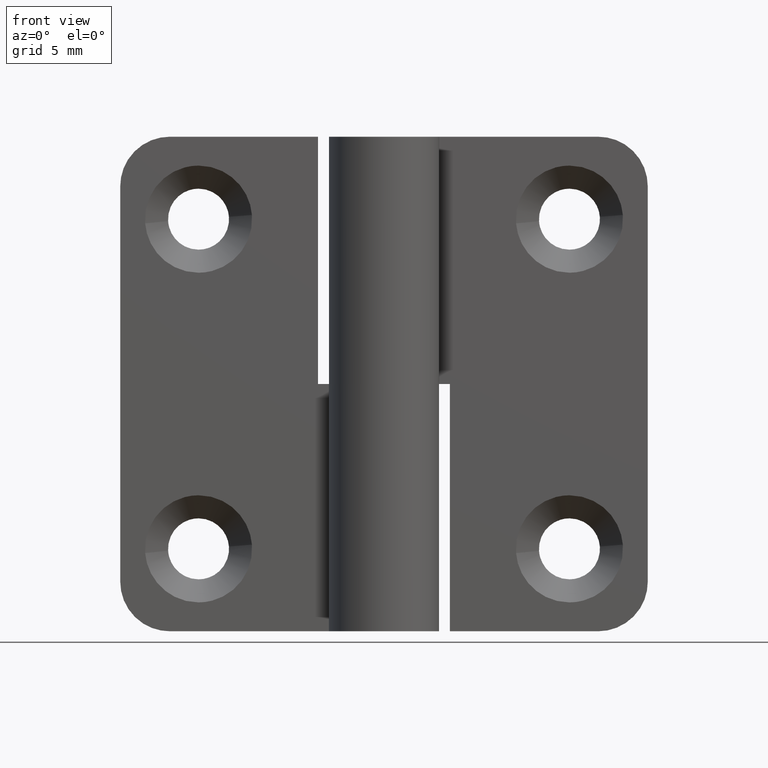
[diagram: clean part render]
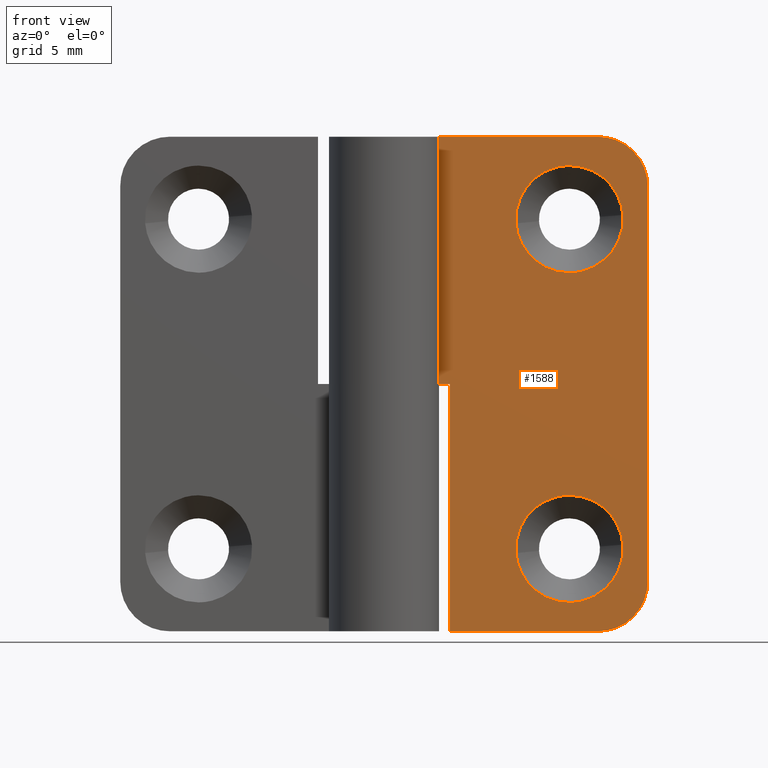
[diagram: same view with one face highlighted and labeled with its STEP entity id]
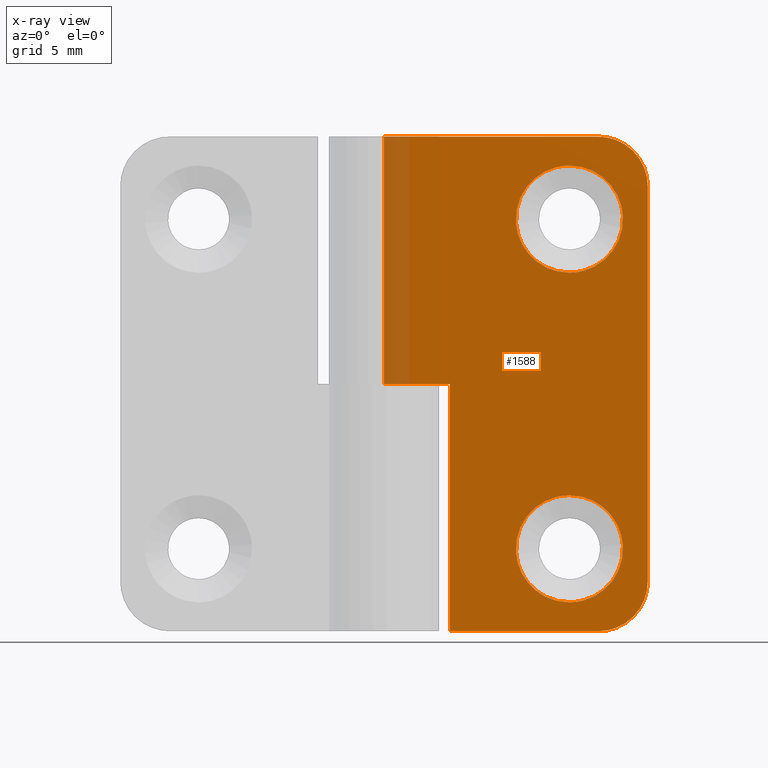
[diagram: x-ray of the same camera — body ghosted, the highlighted face saturated]
A machine part, front view. The second image highlights one B-rep face of the part: STEP entity #1588.
The next image is the same camera in x-ray: the body ghosted, the highlighted face saturated — about 7% of this face is hidden behind the body in this view.
In plain terms, the highlighted face is a freeform B-spline surface patch.
Its self-contained STEP definition (entity closure, byte-faithful):
#661=CARTESIAN_POINT('',(14.489981334637280,1.749999999988452,25.255000061203852));
#662=VERTEX_POINT('',#661);
#668=CARTESIAN_POINT('',(11.250000000000000,1.750000000000000,28.250007999999799));
#669=VERTEX_POINT('',#668);
#670=CARTESIAN_POINT('',(11.250000000000000,1.750000000000000,28.250007999999799));
#671=CARTESIAN_POINT('',(14.254269097726139,1.750000000000000,28.250007999999802));
#672=CARTESIAN_POINT('',(14.489981334637282,1.749999999988452,25.255000061203837));
#680=(BOUNDED_CURVE()B_SPLINE_CURVE(2,(#670,#671,#672),.UNSPECIFIED.,.F.,.U.)B_SPLINE_CURVE_WITH_KNOTS((3,3),(0.0,0.236331300623493),.UNSPECIFIED.)CURVE()GEOMETRIC_REPRESENTATION_ITEM()RATIONAL_B_SPLINE_CURVE((1.0,0.723120658616062,0.969723356152462))REPRESENTATION_ITEM(''));
#681=EDGE_CURVE('',#669,#662,#680,.T.);
#683=CARTESIAN_POINT('',(8.010018665362715,1.749999999988451,24.745015938795760));
#684=VERTEX_POINT('',#683);
#685=CARTESIAN_POINT('',(8.010018665362715,1.749999999988451,24.745015938795760));
#686=CARTESIAN_POINT('',(8.0,1.750000000000000,24.872315152136828));
#687=CARTESIAN_POINT('',(8.0,1.750000000000000,25.000007999999799));
#688=CARTESIAN_POINT('',(8.0,1.750000000000000,28.250007999999792));
#689=CARTESIAN_POINT('',(11.250000000000000,1.750000000000000,28.250007999999799));
#697=(BOUNDED_CURVE()B_SPLINE_CURVE(2,(#685,#686,#687,#688,#689),.UNSPECIFIED.,.F.,.U.)B_SPLINE_CURVE_WITH_KNOTS((3,2,3),(0.736331300623493,0.750000000000000,1.0),.UNSPECIFIED.)CURVE()GEOMETRIC_REPRESENTATION_ITEM()RATIONAL_B_SPLINE_CURVE((0.969723356152462,0.983986122570486,1.0,0.707106781186547,1.0))REPRESENTATION_ITEM(''));
#698=EDGE_CURVE('',#684,#669,#697,.T.);
#735=CARTESIAN_POINT('',(11.250000000000000,1.750000000000000,21.750007999999799));
#736=VERTEX_POINT('',#735);
#737=CARTESIAN_POINT('',(11.250000000000000,1.750000000000000,21.750007999999799));
#738=CARTESIAN_POINT('',(8.245730902273849,1.750000000000000,21.750007999999795));
#739=CARTESIAN_POINT('',(8.010018665362715,1.749999999988451,24.745015938795767));
#747=(BOUNDED_CURVE()B_SPLINE_CURVE(2,(#737,#738,#739),.UNSPECIFIED.,.F.,.U.)B_SPLINE_CURVE_WITH_KNOTS((3,3),(0.500000000000000,0.736331300623494),.UNSPECIFIED.)CURVE()GEOMETRIC_REPRESENTATION_ITEM()RATIONAL_B_SPLINE_CURVE((1.0,0.723120658616061,0.969723356152463))REPRESENTATION_ITEM(''));
#748=EDGE_CURVE('',#736,#684,#747,.T.);
#750=CARTESIAN_POINT('',(14.489981334637278,1.749999999988452,25.255000061203845));
#751=CARTESIAN_POINT('',(14.500000000000005,1.750000000000001,25.127700847862769));
#752=CARTESIAN_POINT('',(14.500000000000000,1.750000000000000,25.000007999999799));
#753=CARTESIAN_POINT('',(14.500000000000004,1.750000000000000,21.750007999999792));
#754=CARTESIAN_POINT('',(11.250000000000000,1.750000000000000,21.750007999999799));
#762=(BOUNDED_CURVE()B_SPLINE_CURVE(2,(#750,#751,#752,#753,#754),.UNSPECIFIED.,.F.,.U.)B_SPLINE_CURVE_WITH_KNOTS((3,2,3),(0.236331300623493,0.250000000000000,0.500000000000000),.UNSPECIFIED.)CURVE()GEOMETRIC_REPRESENTATION_ITEM()RATIONAL_B_SPLINE_CURVE((0.969723356152462,0.983986122570486,1.0,0.707106781186547,1.0))REPRESENTATION_ITEM(''));
#763=EDGE_CURVE('',#662,#736,#762,.T.);
#993=CARTESIAN_POINT('',(14.489981334637280,1.749999999988452,5.254992061204042));
#994=VERTEX_POINT('',#993);
#1000=CARTESIAN_POINT('',(11.250000000000000,1.750000000000000,8.250000000000000));
#1001=VERTEX_POINT('',#1000);
#1002=CARTESIAN_POINT('',(11.250000000000000,1.750000000000000,8.250000000000000));
#1003=CARTESIAN_POINT('',(14.254269097726139,1.750000000000000,8.249999999999998));
#1004=CARTESIAN_POINT('',(14.489981334637282,1.749999999988452,5.254992061204042));
#1012=(BOUNDED_CURVE()B_SPLINE_CURVE(2,(#1002,#1003,#1004),.UNSPECIFIED.,.F.,.U.)B_SPLINE_CURVE_WITH_KNOTS((3,3),(0.0,0.236331300623493),.UNSPECIFIED.)CURVE()GEOMETRIC_REPRESENTATION_ITEM()RATIONAL_B_SPLINE_CURVE((1.0,0.723120658616062,0.969723356152462))REPRESENTATION_ITEM(''));
#1013=EDGE_CURVE('',#1001,#994,#1012,.T.);
#1015=CARTESIAN_POINT('',(8.010018665362715,1.749999999988451,4.745007938795959));
#1016=VERTEX_POINT('',#1015);
#1017=CARTESIAN_POINT('',(8.010018665362715,1.749999999988451,4.745007938795959));
#1018=CARTESIAN_POINT('',(8.0,1.750000000000001,4.872307152137029));
#1019=CARTESIAN_POINT('',(8.0,1.750000000000000,5.0));
#1020=CARTESIAN_POINT('',(8.0,1.750000000000000,8.250000000000000));
#1021=CARTESIAN_POINT('',(11.250000000000000,1.750000000000000,8.250000000000000));
#1029=(BOUNDED_CURVE()B_SPLINE_CURVE(2,(#1017,#1018,#1019,#1020,#1021),.UNSPECIFIED.,.F.,.U.)B_SPLINE_CURVE_WITH_KNOTS((3,2,3),(0.736331300623493,0.750000000000000,1.0),.UNSPECIFIED.)CURVE()GEOMETRIC_REPRESENTATION_ITEM()RATIONAL_B_SPLINE_CURVE((0.969723356152462,0.983986122570486,1.0,0.707106781186547,1.0))REPRESENTATION_ITEM(''));
#1030=EDGE_CURVE('',#1016,#1001,#1029,.T.);
#1067=CARTESIAN_POINT('',(11.250000000000000,1.750000000000000,1.750000000000000));
#1068=VERTEX_POINT('',#1067);
#1069=CARTESIAN_POINT('',(11.250000000000000,1.750000000000000,1.750000000000000));
#1070=CARTESIAN_POINT('',(8.245730902273849,1.750000000000000,1.750000000000000));
#1071=CARTESIAN_POINT('',(8.010018665362715,1.749999999988451,4.745007938795959));
#1079=(BOUNDED_CURVE()B_SPLINE_CURVE(2,(#1069,#1070,#1071),.UNSPECIFIED.,.F.,.U.)B_SPLINE_CURVE_WITH_KNOTS((3,3),(0.500000000000000,0.736331300623494),.UNSPECIFIED.)CURVE()GEOMETRIC_REPRESENTATION_ITEM()RATIONAL_B_SPLINE_CURVE((1.0,0.723120658616061,0.969723356152463))REPRESENTATION_ITEM(''));
#1080=EDGE_CURVE('',#1068,#1016,#1079,.T.);
#1082=CARTESIAN_POINT('',(14.489981334637278,1.749999999988452,5.254992061204042));
#1083=CARTESIAN_POINT('',(14.500000000000005,1.750000000000000,5.127692847862972));
#1084=CARTESIAN_POINT('',(14.500000000000000,1.750000000000000,5.0));
#1085=CARTESIAN_POINT('',(14.500000000000004,1.750000000000000,1.750000000000000));
#1086=CARTESIAN_POINT('',(11.250000000000000,1.750000000000000,1.750000000000000));
#1094=(BOUNDED_CURVE()B_SPLINE_CURVE(2,(#1082,#1083,#1084,#1085,#1086),.UNSPECIFIED.,.F.,.U.)B_SPLINE_CURVE_WITH_KNOTS((3,2,3),(0.236331300623493,0.250000000000000,0.500000000000000),.UNSPECIFIED.)CURVE()GEOMETRIC_REPRESENTATION_ITEM()RATIONAL_B_SPLINE_CURVE((0.969723356152462,0.983986122570486,1.0,0.707106781186547,1.0))REPRESENTATION_ITEM(''));
#1095=EDGE_CURVE('',#994,#1068,#1094,.T.);
#1106=CARTESIAN_POINT('',(3.999999999999885,1.750000000000030,0.0));
#1107=VERTEX_POINT('',#1106);
#1108=CARTESIAN_POINT('',(3.999999999999885,1.750000000000030,15.0));
#1109=VERTEX_POINT('',#1108);
#1110=CARTESIAN_POINT('',(3.999999999999885,1.750000000000030,0.0));
#1111=CARTESIAN_POINT('',(3.999999999999885,1.750000000000030,15.0));
#1112=QUASI_UNIFORM_CURVE('',1,(#1110,#1111),.UNSPECIFIED.,.F.,.U.);
#1113=EDGE_CURVE('',#1107,#1109,#1112,.T.);
#1142=CARTESIAN_POINT('',(4.440892E-016,1.750000000000000,15.0));
#1143=VERTEX_POINT('',#1142);
#1144=CARTESIAN_POINT('',(3.999999999999885,1.750000000000030,15.0));
#1145=CARTESIAN_POINT('',(4.440892E-016,1.750000000000000,15.0));
#1146=QUASI_UNIFORM_CURVE('',1,(#1144,#1145),.UNSPECIFIED.,.F.,.U.);
#1147=EDGE_CURVE('',#1109,#1143,#1146,.T.);
#1228=CARTESIAN_POINT('',(16.0,1.750000000000030,27.000008000000001));
#1229=VERTEX_POINT('',#1228);
#1230=CARTESIAN_POINT('',(13.0,1.750000000000030,30.000008000000001));
#1231=VERTEX_POINT('',#1230);
#1232=CARTESIAN_POINT('',(16.0,1.750000000000030,27.000008000000001));
#1233=CARTESIAN_POINT('',(15.999999999999998,1.750000000000031,30.000008000000005));
#1234=CARTESIAN_POINT('',(13.0,1.750000000000030,30.000008000000001));
#1242=(BOUNDED_CURVE()B_SPLINE_CURVE(2,(#1232,#1233,#1234),.UNSPECIFIED.,.F.,.U.)CURVE()GEOMETRIC_REPRESENTATION_ITEM()QUASI_UNIFORM_CURVE()RATIONAL_B_SPLINE_CURVE((1.0,0.707106781186548,1.0))REPRESENTATION_ITEM(''));
#1243=EDGE_CURVE('',#1229,#1231,#1242,.T.);
#1289=CARTESIAN_POINT('',(13.0,1.750000000000000,0.0));
#1290=VERTEX_POINT('',#1289);
#1291=CARTESIAN_POINT('',(16.0,1.750000000000030,3.0));
#1292=VERTEX_POINT('',#1291);
#1293=CARTESIAN_POINT('',(13.0,1.750000000000000,0.0));
#1294=CARTESIAN_POINT('',(15.999999999999998,1.750000000000031,0.0));
#1295=CARTESIAN_POINT('',(16.0,1.750000000000030,3.0));
#1303=(BOUNDED_CURVE()B_SPLINE_CURVE(2,(#1293,#1294,#1295),.UNSPECIFIED.,.F.,.U.)CURVE()GEOMETRIC_REPRESENTATION_ITEM()QUASI_UNIFORM_CURVE()RATIONAL_B_SPLINE_CURVE((1.0,0.707106781186548,1.0))REPRESENTATION_ITEM(''));
#1304=EDGE_CURVE('',#1290,#1292,#1303,.T.);
#1341=CARTESIAN_POINT('',(4.440892E-016,1.750000000000000,30.000008000000001));
#1342=VERTEX_POINT('',#1341);
#1343=CARTESIAN_POINT('',(4.440892E-016,1.750000000000000,30.000008000000001));
#1344=CARTESIAN_POINT('',(13.0,1.750000000000030,30.000008000000001));
#1345=QUASI_UNIFORM_CURVE('',1,(#1343,#1344),.UNSPECIFIED.,.F.,.U.);
#1346=EDGE_CURVE('',#1342,#1231,#1345,.T.);
#1418=CARTESIAN_POINT('',(3.999999999999885,1.750000000000030,0.0));
#1419=CARTESIAN_POINT('',(13.0,1.750000000000000,0.0));
#1420=QUASI_UNIFORM_CURVE('',1,(#1418,#1419),.UNSPECIFIED.,.F.,.U.);
#1421=EDGE_CURVE('',#1107,#1290,#1420,.T.);
#1503=CARTESIAN_POINT('',(4.440892E-016,1.750000000000000,15.0));
#1504=CARTESIAN_POINT('',(4.440892E-016,1.750000000000000,30.000008000000001));
#1505=QUASI_UNIFORM_CURVE('',1,(#1503,#1504),.UNSPECIFIED.,.F.,.U.);
#1506=EDGE_CURVE('',#1143,#1342,#1505,.T.);
#1524=CARTESIAN_POINT('',(16.0,1.750000000000030,3.0));
#1525=CARTESIAN_POINT('',(16.0,1.750000000000030,27.000008000000001));
#1526=QUASI_UNIFORM_CURVE('',1,(#1524,#1525),.UNSPECIFIED.,.F.,.U.);
#1527=EDGE_CURVE('',#1292,#1229,#1526,.T.);
#1561=CARTESIAN_POINT('',(-0.799199968988895,1.750000000000000,31.498508059835551));
#1562=CARTESIAN_POINT('',(-0.799199968988895,1.750000000000000,-1.498501132719441));
#1563=CARTESIAN_POINT('',(16.799200398142339,1.750000000000000,31.498508059835551));
#1564=CARTESIAN_POINT('',(16.799200398142339,1.750000000000000,-1.498501132719441));
#1565=B_SPLINE_SURFACE_WITH_KNOTS('',1,1,((#1561,#1563),(#1562,#1564)),.UNSPECIFIED.,.F.,.F.,.U.,(2,2),(2,2),(0.0,32.997009192554998),(0.0,17.598400367131230),.UNSPECIFIED.);
#1566=ORIENTED_EDGE('',*,*,#1147,.F.);
#1567=ORIENTED_EDGE('',*,*,#1113,.F.);
#1568=ORIENTED_EDGE('',*,*,#1421,.T.);
#1569=ORIENTED_EDGE('',*,*,#1304,.T.);
#1570=ORIENTED_EDGE('',*,*,#1527,.T.);
#1571=ORIENTED_EDGE('',*,*,#1243,.T.);
#1572=ORIENTED_EDGE('',*,*,#1346,.F.);
#1573=ORIENTED_EDGE('',*,*,#1506,.F.);
#1574=EDGE_LOOP('',(#1566,#1567,#1568,#1569,#1570,#1571,#1572,#1573));
#1575=FACE_OUTER_BOUND('',#1574,.T.);
#1576=ORIENTED_EDGE('',*,*,#1080,.T.);
#1577=ORIENTED_EDGE('',*,*,#1030,.T.);
#1578=ORIENTED_EDGE('',*,*,#1013,.T.);
#1579=ORIENTED_EDGE('',*,*,#1095,.T.);
#1580=EDGE_LOOP('',(#1576,#1577,#1578,#1579));
#1581=FACE_BOUND('',#1580,.T.);
#1582=ORIENTED_EDGE('',*,*,#748,.T.);
#1583=ORIENTED_EDGE('',*,*,#698,.T.);
#1584=ORIENTED_EDGE('',*,*,#681,.T.);
#1585=ORIENTED_EDGE('',*,*,#763,.T.);
#1586=EDGE_LOOP('',(#1582,#1583,#1584,#1585));
#1587=FACE_BOUND('',#1586,.T.);
#1588=ADVANCED_FACE('',(#1575,#1581,#1587),#1565,.T.);